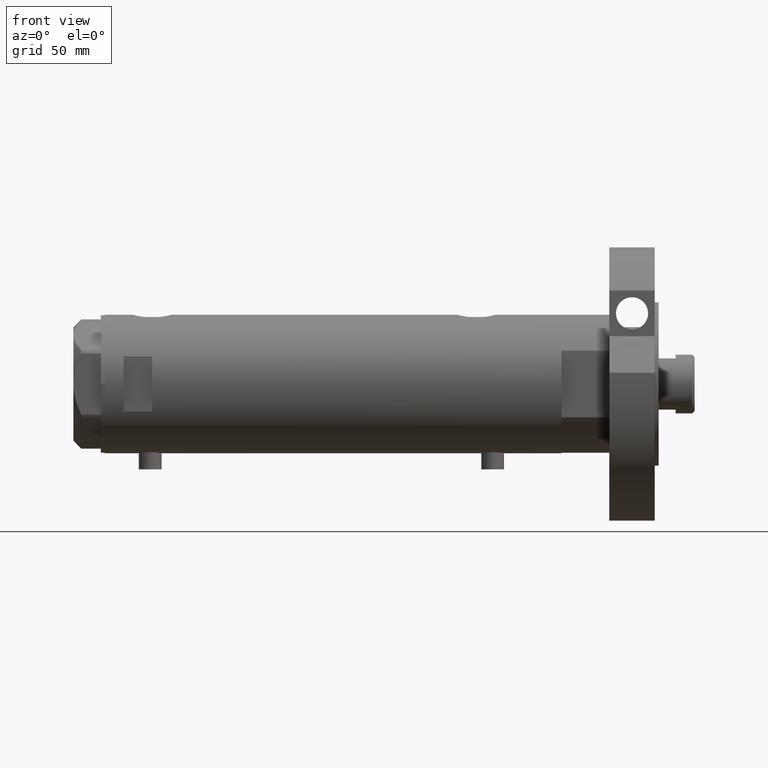
[diagram: clean part render]
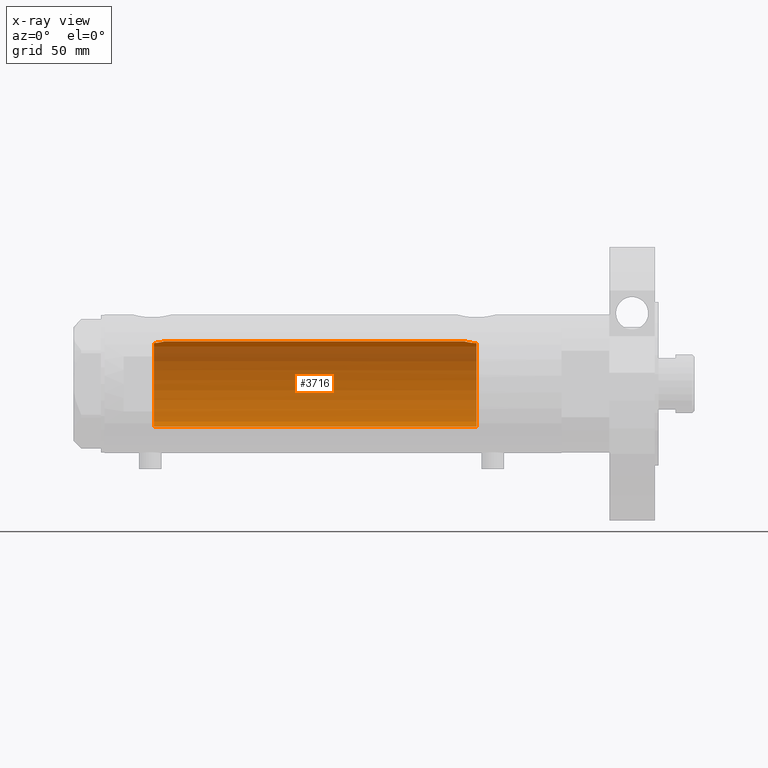
[diagram: x-ray — body ghosted, one internal face saturated and labeled with its STEP entity id]
A machine part, front view, then the same camera in x-ray: the body is ghosted and one INTERNAL B-rep face — a face not visible from any outside direction — is saturated and labeled: STEP entity #3716.
In plain terms, the highlighted cylindrical surface (partial cylindrical patch) has radius 22.5 mm, axis along (1, 0, -0).
Its self-contained STEP definition (entity closure, byte-faithful):
#26 = CARTESIAN_POINT ( 'NONE',  ( 21.58039466125149630, 6.367443256290039599, -73.88625661091904817 ) ) ;
#50 = CARTESIAN_POINT ( 'NONE',  ( 21.54248662244913604, 6.494090541481658541, -74.51861175082140676 ) ) ;
#129 = CYLINDRICAL_SURFACE ( 'NONE', #901, 22.50000000000000355 ) ;
#316 = VERTEX_POINT ( 'NONE', #3024 ) ;
#410 = CARTESIAN_POINT ( 'NONE',  ( 21.85834467356398747, 5.340944334976046370, 91.53736885285054825 ) ) ;
#418 = CARTESIAN_POINT ( 'NONE',  ( 22.31307373663816662, 2.921646833104070140, -69.68858613169777527 ) ) ;
#441 = CARTESIAN_POINT ( 'NONE',  ( 22.03020271031500599, 4.583618747547674843, 90.66326305060307789 ) ) ;
#639 = ORIENTED_EDGE ( 'NONE', *, *, #3488, .F. ) ;
#649 = EDGE_CURVE ( 'NONE', #4808, #2100, #5416, .T. ) ;
#701 = AXIS2_PLACEMENT_3D ( 'NONE', #2202, #5483, #1242 ) ;
#874 = CARTESIAN_POINT ( 'NONE',  ( 21.53958216864942088, 6.503568251352485952, 94.40000000000000568 ) ) ;
#901 = AXIS2_PLACEMENT_3D ( 'NONE', #4751, #1939, #4284 ) ;
#914 = CARTESIAN_POINT ( 'NONE',  ( 21.65875036540690601, 6.096384986856001831, 92.89350157007415021 ) ) ;
#923 = CARTESIAN_POINT ( 'NONE',  ( 22.07793805162484091, 4.348669293362737776, -70.64321183416399208 ) ) ;
#1044 = ORIENTED_EDGE ( 'NONE', *, *, #5981, .T. ) ;
#1147 = LINE ( 'NONE', #3051, #2166 ) ;
#1242 = DIRECTION ( 'NONE',  ( 1.000000000000000000, 0.000000000000000000, 0.000000000000000000 ) ) ;
#1249 = CARTESIAN_POINT ( 'NONE',  ( 21.71097692913351906, 5.908765693315412904, -72.67224774632268236 ) ) ;
#1337 = CARTESIAN_POINT ( 'NONE',  ( 22.50000000000000355, 8.058593785575293352E-16, -69.01999999999999602 ) ) ;
#1359 = CARTESIAN_POINT ( 'NONE',  ( 21.80257506594836414, 5.561983929949493088, 91.86293428743495326 ) ) ;
#1367 = CARTESIAN_POINT ( 'NONE',  ( 21.85514244747244561, 5.349553529053608258, -71.76278474480278646 ) ) ;
#1402 = DIRECTION ( 'NONE',  ( -1.000000000000000000, 0.000000000000000000, 0.000000000000000000 ) ) ;
#1586 = CARTESIAN_POINT ( 'NONE',  ( 22.50000000000000355, 2.755455298081545172E-15, 120.4000000000000057 ) ) ;
#1595 = CIRCLE ( 'NONE', #4670, 22.50000000000000355 ) ;
#1774 = VERTEX_POINT ( 'NONE', #3654 ) ;
#1795 = CARTESIAN_POINT ( 'NONE',  ( 21.55996057785741371, 6.435875139617808216, 94.01641692772588499 ) ) ;
#1798 = B_SPLINE_CURVE_WITH_KNOTS ( 'NONE', 3,
 ( #1337, #5572, #2739, #4635, #4675, #418, #4210, #1830, #923, #3747, #5636, #5512, #1367, #4546, #1249, #3163, #26, #50, #3421, #3871, #4834, #3904 ),
 .UNSPECIFIED., .F., .F.,
 ( 4, 2, 2, 2, 2, 2, 2, 2, 2, 2, 4 ),
 ( 0.02068572879290662969, 0.02197833177876011915, 0.02327093476461360860, 0.02456353775046710153, 0.02585614073632059098, 0.02650244222924735132, 0.02714874372217410819, 0.02844134670802762888, 0.02973394969388114956, 0.03038025118680791337, 0.03102655267973467371 ),
 .UNSPECIFIED. ) ;
#1824 = CARTESIAN_POINT ( 'NONE',  ( 21.60406082673097572, 6.286405977953737789, 93.44666670735806235 ) ) ;
#1830 = CARTESIAN_POINT ( 'NONE',  ( 22.14109776314136724, 4.018961829707384581, -70.37237162697964266 ) ) ;
#1852 = CARTESIAN_POINT ( 'NONE',  ( 22.34487948028763427, 2.662928462767977233, 89.37031008565887191 ) ) ;
#1939 = DIRECTION ( 'NONE',  ( -0.000000000000000000, -0.000000000000000000, -1.000000000000000000 ) ) ;
#1953 = CARTESIAN_POINT ( 'NONE',  ( 0.000000000000000000, 0.000000000000000000, -75.59999999999999432 ) ) ;
#2008 = ORIENTED_EDGE ( 'NONE', *, *, #5035, .T. ) ;
#2100 = VERTEX_POINT ( 'NONE', #5913 ) ;
#2166 = VECTOR ( 'NONE', #4946, 1000.000000000000000 ) ;
#2202 = CARTESIAN_POINT ( 'NONE',  ( 0.000000000000000000, 0.000000000000000000, 94.40000000000000568 ) ) ;
#2293 = CARTESIAN_POINT ( 'NONE',  ( 22.40112435233284671, 2.115025885874704414, 89.16613662186026090 ) ) ;
#2443 = EDGE_CURVE ( 'NONE', #2624, #1774, #1147, .T. ) ;
#2624 = VERTEX_POINT ( 'NONE', #2889 ) ;
#2627 = CARTESIAN_POINT ( 'NONE',  ( 22.50000000000000355, 8.058593785575293352E-16, -69.01999999999999602 ) ) ;
#2676 = VECTOR ( 'NONE', #3035, 1000.000000000000000 ) ;
#2739 = CARTESIAN_POINT ( 'NONE',  ( 22.48752745446833146, 0.8626660575027231825, -69.06226479722903377 ) ) ;
#2809 = CARTESIAN_POINT ( 'NONE',  ( 22.48961798642638144, 0.7839168256130889523, 88.85525408827135152 ) ) ;
#2877 = DIRECTION ( 'NONE',  ( 0.000000000000000000, 0.000000000000000000, -1.000000000000000000 ) ) ;
#2889 = CARTESIAN_POINT ( 'NONE',  ( -22.50000000000000355, 0.000000000000000000, 94.40000000000000568 ) ) ;
#3024 = CARTESIAN_POINT ( 'NONE',  ( 21.51635656889892800, 6.580000000000002736, -75.59999999999999432 ) ) ;
#3035 = DIRECTION ( 'NONE',  ( -0.000000000000000000, -0.000000000000000000, -1.000000000000000000 ) ) ;
#3051 = CARTESIAN_POINT ( 'NONE',  ( -22.50000000000000355, 0.000000000000000000, 120.4000000000000057 ) ) ;
#3104 = CARTESIAN_POINT ( 'NONE',  ( 21.53958216864942088, 6.503568251352485952, 94.40000000000000568 ) ) ;
#3163 = CARTESIAN_POINT ( 'NONE',  ( 21.61738790272777777, 6.242481197317903074, -73.47475324290418541 ) ) ;
#3247 = CARTESIAN_POINT ( 'NONE',  ( 22.41810768969941847, 1.927264596308561284, 89.10552498238021712 ) ) ;
#3251 = ORIENTED_EDGE ( 'NONE', *, *, #2443, .T. ) ;
#3284 = CARTESIAN_POINT ( 'NONE',  ( 21.97198143592079234, 4.852313884858193482, 90.93898489903314442 ) ) ;
#3317 = ORIENTED_EDGE ( 'NONE', *, *, #5918, .F. ) ;
#3330 = EDGE_LOOP ( 'NONE', ( #639, #3641, #2008, #3251, #1044, #3317 ) ) ;
#3421 = CARTESIAN_POINT ( 'NONE',  ( 21.53277870401796434, 6.526097350343576409, -74.73193080670431243 ) ) ;
#3488 = EDGE_CURVE ( 'NONE', #2100, #4990, #5500, .T. ) ;
#3579 = CIRCLE ( 'NONE', #701, 22.50000000000000355 ) ;
#3641 = ORIENTED_EDGE ( 'NONE', *, *, #649, .F. ) ;
#3654 = CARTESIAN_POINT ( 'NONE',  ( -22.50000000000000355, 0.000000000000000000, -75.59999999999999432 ) ) ;
#3713 = CARTESIAN_POINT ( 'NONE',  ( 22.30007684883240060, 3.011608117356129988, 89.53690468166831806 ) ) ;
#3716 = ADVANCED_FACE ( 'NONE', ( #3889 ), #129, .F. ) ;
#3740 = CARTESIAN_POINT ( 'NONE',  ( 21.54850992350584704, 6.473999851071387646, 94.20769989068857342 ) ) ;
#3747 = CARTESIAN_POINT ( 'NONE',  ( 21.98170506496023791, 4.804030677015548534, -71.09847163284564431 ) ) ;
#3871 = CARTESIAN_POINT ( 'NONE',  ( 21.51969523957628283, 6.569111213712935715, -75.16380209493694053 ) ) ;
#3889 = FACE_OUTER_BOUND ( 'NONE', #3330, .T. ) ;
#3904 = CARTESIAN_POINT ( 'NONE',  ( 21.51635656889892800, 6.580000000000002736, -75.59999999999999432 ) ) ;
#4210 = CARTESIAN_POINT ( 'NONE',  ( 22.25860915731085043, 3.306748059303226128, -69.89512753277104196 ) ) ;
#4228 = CARTESIAN_POINT ( 'NONE',  ( 22.45973433770731376, 1.359115216171842722, 88.95894713662340791 ) ) ;
#4284 = DIRECTION ( 'NONE',  ( -1.000000000000000000, 0.000000000000000000, 0.000000000000000000 ) ) ;
#4546 = CARTESIAN_POINT ( 'NONE',  ( 21.76592257976932743, 5.705656113855375189, -72.29484284637811697 ) ) ;
#4635 = CARTESIAN_POINT ( 'NONE',  ( 22.43846943857365517, 1.717024460055897039, -69.23305400432137446 ) ) ;
#4666 = CARTESIAN_POINT ( 'NONE',  ( 21.70300828301578733, 5.938634204148080187, 92.54008341356920653 ) ) ;
#4670 = AXIS2_PLACEMENT_3D ( 'NONE', #1953, #2877, #1402 ) ;
#4675 = CARTESIAN_POINT ( 'NONE',  ( 22.40265168709897026, 2.128491761919766301, -69.35897789146818582 ) ) ;
#4698 = CARTESIAN_POINT ( 'NONE',  ( 22.50000000000000000, 0.3947970979781452727, 88.81999999999999318 ) ) ;
#4751 = CARTESIAN_POINT ( 'NONE',  ( 0.000000000000000000, 0.000000000000000000, 120.4000000000000057 ) ) ;
#4808 = VERTEX_POINT ( 'NONE', #3104 ) ;
#4834 = CARTESIAN_POINT ( 'NONE',  ( 21.51635656889893156, 6.580000000000001847, -75.38312317022888465 ) ) ;
#4946 = DIRECTION ( 'NONE',  ( -0.000000000000000000, -0.000000000000000000, -1.000000000000000000 ) ) ;
#4990 = VERTEX_POINT ( 'NONE', #2627 ) ;
#5035 = EDGE_CURVE ( 'NONE', #4808, #2624, #3579, .T. ) ;
#5133 = CARTESIAN_POINT ( 'NONE',  ( 22.20005338163446496, 3.677069589895778812, 89.92964083487821370 ) ) ;
#5169 = CARTESIAN_POINT ( 'NONE',  ( 22.14421896774458531, 3.996618394220595061, 90.15850411031067324 ) ) ;
#5416 = B_SPLINE_CURVE_WITH_KNOTS ( 'NONE', 3,
 ( #874, #3740, #1795, #5625, #1824, #914, #4666, #1359, #410, #3284, #441, #5169, #5133, #3713, #1852, #2293, #3247, #5595, #4228, #2809, #4698, #6112 ),
 .UNSPECIFIED., .F., .F.,
 ( 4, 2, 2, 2, 2, 2, 2, 2, 2, 2, 4 ),
 ( 0.03202894702871425525, 0.03261250414633488220, 0.03319606126395550916, 0.03436317549919672837, 0.03553028973443794758, 0.03669740396967915985, 0.03786451820492037906, 0.03903163244016159827, 0.03961518955778220441, 0.04019874667540280361, 0.04136586091064399506 ),
 .UNSPECIFIED. ) ;
#5483 = DIRECTION ( 'NONE',  ( 0.000000000000000000, 0.000000000000000000, 1.000000000000000000 ) ) ;
#5500 = LINE ( 'NONE', #1586, #2676 ) ;
#5512 = CARTESIAN_POINT ( 'NONE',  ( 21.88602906110443058, 5.222191658358653399, -71.59110908501990878 ) ) ;
#5572 = CARTESIAN_POINT ( 'NONE',  ( 22.50000000000000711, 0.4308769323960456310, -69.02000000000001023 ) ) ;
#5595 = CARTESIAN_POINT ( 'NONE',  ( 22.44738562510071489, 1.549445000368397940, 89.00203276325541424 ) ) ;
#5625 = CARTESIAN_POINT ( 'NONE',  ( 21.58771824211647683, 6.342145538420568052, 93.63591924784435605 ) ) ;
#5636 = CARTESIAN_POINT ( 'NONE',  ( 21.94924653817634663, 4.949760619110004534, -71.25922104935665402 ) ) ;
#5913 = CARTESIAN_POINT ( 'NONE',  ( 22.50000000000000355, 0.000000000000000000, 88.82000000000000739 ) ) ;
#5918 = EDGE_CURVE ( 'NONE', #4990, #316, #1798, .T. ) ;
#5981 = EDGE_CURVE ( 'NONE', #1774, #316, #1595, .T. ) ;
#6112 = CARTESIAN_POINT ( 'NONE',  ( 22.50000000000000355, 0.000000000000000000, 88.82000000000000739 ) ) ;